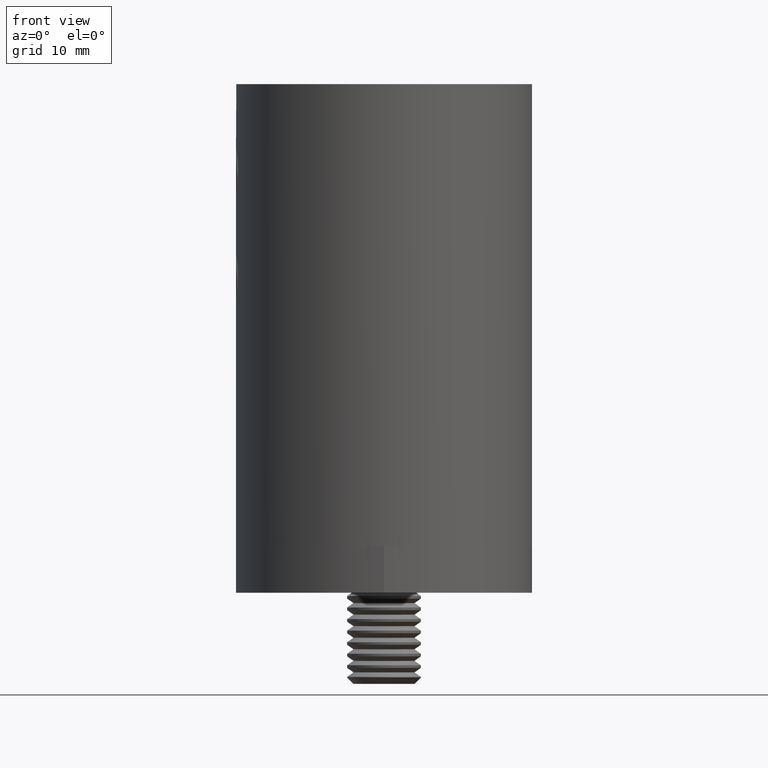
[diagram: clean part render]
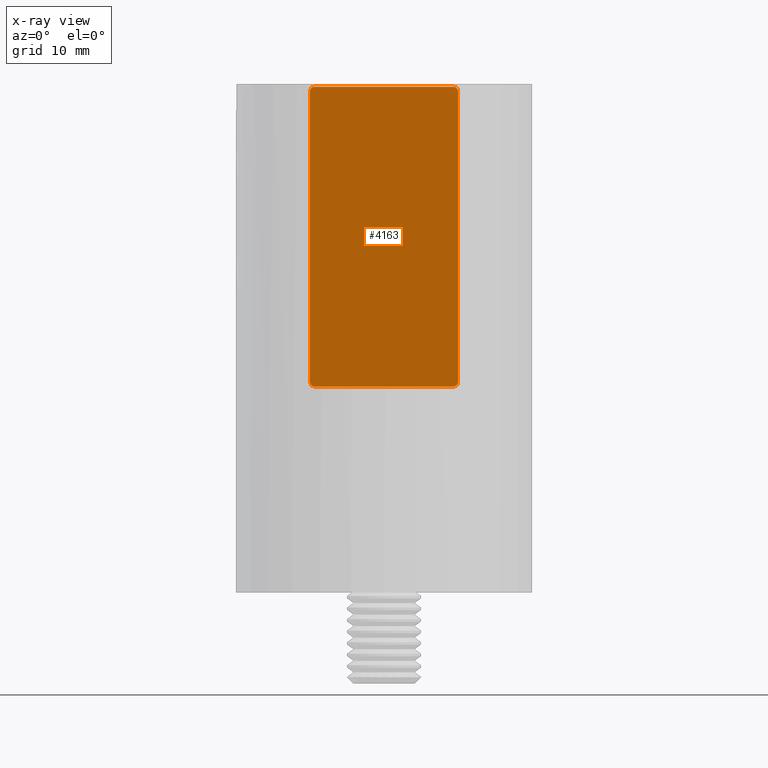
[diagram: x-ray — body ghosted, one internal face saturated and labeled with its STEP entity id]
A machine part, front view, then the same camera in x-ray: the body is ghosted and one INTERNAL B-rep face — a face not visible from any outside direction — is saturated and labeled: STEP entity #4163.
In plain terms, the highlighted planar face has unit normal (0, -1, -0).
Its self-contained STEP definition (entity closure, byte-faithful):
#176 = AXIS2_PLACEMENT_3D ( 'NONE', #4943, #19693, #12561 ) ;
#240 = VERTEX_POINT ( 'NONE', #15852 ) ;
#385 = VERTEX_POINT ( 'NONE', #16170 ) ;
#475 = ORIENTED_EDGE ( 'NONE', *, *, #6703, .F. ) ;
#608 = DIRECTION ( 'NONE',  ( 1.000000000000000000, 0.000000000000000000, 0.000000000000000000 ) ) ;
#758 = VERTEX_POINT ( 'NONE', #16936 ) ;
#864 = ORIENTED_EDGE ( 'NONE', *, *, #11726, .F. ) ;
#1173 = DIRECTION ( 'NONE',  ( 0.000000000000000000, 0.000000000000000000, -1.000000000000000000 ) ) ;
#1239 = CARTESIAN_POINT ( 'NONE',  ( 15.69999999999999574, 0.000000000000000000, 8.000000000000000000 ) ) ;
#1256 = EDGE_CURVE ( 'NONE', #11819, #758, #9787, .T. ) ;
#1396 = ORIENTED_EDGE ( 'NONE', *, *, #2176, .T. ) ;
#1541 = CIRCLE ( 'NONE', #1557, 0.5000000000000004441 ) ;
#1557 = AXIS2_PLACEMENT_3D ( 'NONE', #19560, #9804, #13083 ) ;
#1962 = AXIS2_PLACEMENT_3D ( 'NONE', #11613, #16466, #14632 ) ;
#2176 = EDGE_CURVE ( 'NONE', #12094, #385, #3944, .T. ) ;
#2922 = CIRCLE ( 'NONE', #18631, 0.5000000000000004441 ) ;
#2944 = LINE ( 'NONE', #3577, #6241 ) ;
#3145 = VECTOR ( 'NONE', #1173, 1000.000000000000000 ) ;
#3577 = CARTESIAN_POINT ( 'NONE',  ( -15.69999999999999574, 0.000000000000000000, 8.000000000000000000 ) ) ;
#3944 = LINE ( 'NONE', #12699, #11796 ) ;
#4163 = ADVANCED_FACE ( 'NONE', ( #17140 ), #9360, .T. ) ;
#4392 = DIRECTION ( 'NONE',  ( 0.000000000000000000, 0.000000000000000000, 1.000000000000000000 ) ) ;
#4626 = DIRECTION ( 'NONE',  ( 1.000000000000000000, 0.000000000000000000, 0.000000000000000000 ) ) ;
#4767 = ORIENTED_EDGE ( 'NONE', *, *, #8282, .F. ) ;
#4943 = CARTESIAN_POINT ( 'NONE',  ( 15.69999999999999929, 0.000000000000000000, 7.500000000000000000 ) ) ;
#6119 = EDGE_CURVE ( 'NONE', #385, #13161, #1541, .T. ) ;
#6241 = VECTOR ( 'NONE', #608, 1000.000000000000000 ) ;
#6703 = EDGE_CURVE ( 'NONE', #12094, #9043, #9910, .T. ) ;
#7206 = CARTESIAN_POINT ( 'NONE',  ( 16.19999999999999929, 0.000000000000000000, 7.499999999999996447 ) ) ;
#7874 = DIRECTION ( 'NONE',  ( 0.000000000000000000, 0.000000000000000000, -1.000000000000000000 ) ) ;
#8282 = EDGE_CURVE ( 'NONE', #9043, #11819, #2944, .T. ) ;
#8438 = LINE ( 'NONE', #20552, #16596 ) ;
#9043 = VERTEX_POINT ( 'NONE', #15339 ) ;
#9360 = PLANE ( 'NONE',  #15981 ) ;
#9483 = LINE ( 'NONE', #7206, #3145 ) ;
#9787 = CIRCLE ( 'NONE', #176, 0.5000000000000004441 ) ;
#9804 = DIRECTION ( 'NONE',  ( -0.000000000000000000, -1.000000000000000000, 0.000000000000000000 ) ) ;
#9910 = CIRCLE ( 'NONE', #1962, 0.5000000000000004441 ) ;
#10348 = EDGE_CURVE ( 'NONE', #13338, #240, #2922, .T. ) ;
#10780 = DIRECTION ( 'NONE',  ( 0.000000000000000000, 1.000000000000000000, 0.000000000000000000 ) ) ;
#11613 = CARTESIAN_POINT ( 'NONE',  ( -15.69999999999999929, 0.000000000000000000, 7.500000000000000000 ) ) ;
#11726 = EDGE_CURVE ( 'NONE', #758, #13338, #9483, .T. ) ;
#11796 = VECTOR ( 'NONE', #7874, 1000.000000000000000 ) ;
#11819 = VERTEX_POINT ( 'NONE', #1239 ) ;
#12094 = VERTEX_POINT ( 'NONE', #18776 ) ;
#12400 = EDGE_CURVE ( 'NONE', #13161, #240, #8438, .T. ) ;
#12561 = DIRECTION ( 'NONE',  ( 0.000000000000000000, 0.000000000000000000, 1.000000000000000000 ) ) ;
#12577 = DIRECTION ( 'NONE',  ( 0.000000000000000000, -1.000000000000000000, 0.000000000000000000 ) ) ;
#12699 = CARTESIAN_POINT ( 'NONE',  ( -16.19999999999999929, 0.000000000000000000, 7.499999999999996447 ) ) ;
#13083 = DIRECTION ( 'NONE',  ( 0.000000000000000000, 0.000000000000000000, -1.000000000000000000 ) ) ;
#13160 = ORIENTED_EDGE ( 'NONE', *, *, #12400, .T. ) ;
#13161 = VERTEX_POINT ( 'NONE', #17157 ) ;
#13338 = VERTEX_POINT ( 'NONE', #20959 ) ;
#14632 = DIRECTION ( 'NONE',  ( 0.000000000000000000, 0.000000000000000000, 1.000000000000000000 ) ) ;
#15286 = EDGE_LOOP ( 'NONE', ( #15324, #13160, #17207, #864, #17906, #4767, #475, #1396 ) ) ;
#15324 = ORIENTED_EDGE ( 'NONE', *, *, #6119, .T. ) ;
#15339 = CARTESIAN_POINT ( 'NONE',  ( -15.69999999999999574, 0.000000000000000000, 8.000000000000000000 ) ) ;
#15852 = CARTESIAN_POINT ( 'NONE',  ( 15.69999999999999574, 0.000000000000000000, -8.000000000000000000 ) ) ;
#15981 = AXIS2_PLACEMENT_3D ( 'NONE', #17637, #12577, #20755 ) ;
#16170 = CARTESIAN_POINT ( 'NONE',  ( -16.19999999999999929, 0.000000000000000000, -7.499999999999996447 ) ) ;
#16466 = DIRECTION ( 'NONE',  ( 0.000000000000000000, 1.000000000000000000, 0.000000000000000000 ) ) ;
#16596 = VECTOR ( 'NONE', #4626, 1000.000000000000000 ) ;
#16936 = CARTESIAN_POINT ( 'NONE',  ( 16.19999999999999929, 0.000000000000000000, 7.499999999999996447 ) ) ;
#17140 = FACE_OUTER_BOUND ( 'NONE', #15286, .T. ) ;
#17157 = CARTESIAN_POINT ( 'NONE',  ( -15.69999999999999574, 0.000000000000000000, -8.000000000000000000 ) ) ;
#17207 = ORIENTED_EDGE ( 'NONE', *, *, #10348, .F. ) ;
#17637 = CARTESIAN_POINT ( 'NONE',  ( -15.69999999999999929, 0.000000000000000000, -7.500000000000000000 ) ) ;
#17906 = ORIENTED_EDGE ( 'NONE', *, *, #1256, .F. ) ;
#18631 = AXIS2_PLACEMENT_3D ( 'NONE', #20519, #10780, #4392 ) ;
#18776 = CARTESIAN_POINT ( 'NONE',  ( -16.19999999999999929, 0.000000000000000000, 7.499999999999996447 ) ) ;
#19560 = CARTESIAN_POINT ( 'NONE',  ( -15.69999999999999929, 0.000000000000000000, -7.500000000000000000 ) ) ;
#19693 = DIRECTION ( 'NONE',  ( 0.000000000000000000, 1.000000000000000000, 0.000000000000000000 ) ) ;
#20519 = CARTESIAN_POINT ( 'NONE',  ( 15.69999999999999929, 0.000000000000000000, -7.500000000000000000 ) ) ;
#20552 = CARTESIAN_POINT ( 'NONE',  ( -15.69999999999999574, 0.000000000000000000, -8.000000000000000000 ) ) ;
#20755 = DIRECTION ( 'NONE',  ( 0.000000000000000000, -0.000000000000000000, -1.000000000000000000 ) ) ;
#20959 = CARTESIAN_POINT ( 'NONE',  ( 16.19999999999999929, 0.000000000000000000, -7.499999999999996447 ) ) ;